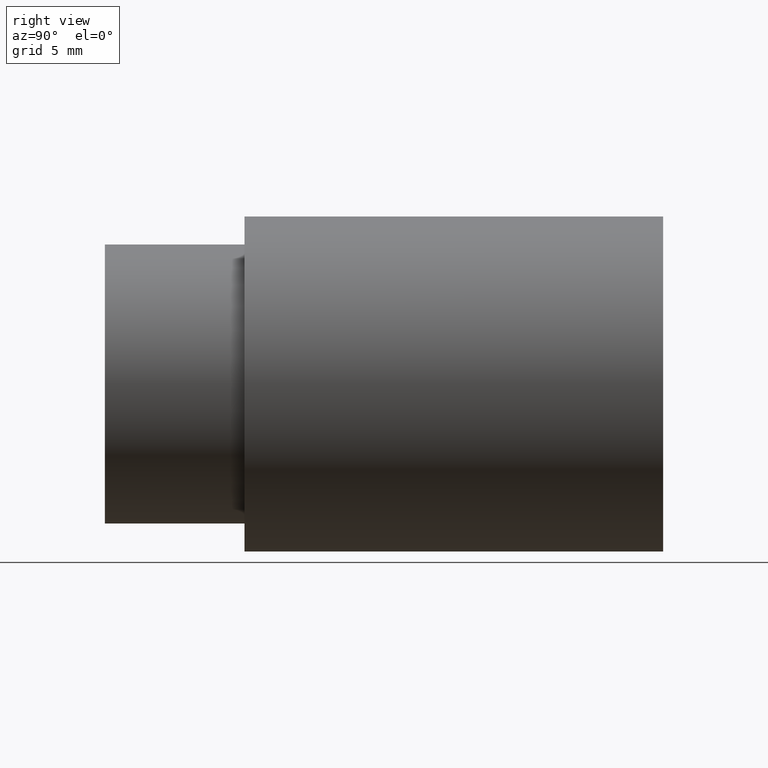
[diagram: clean part render]
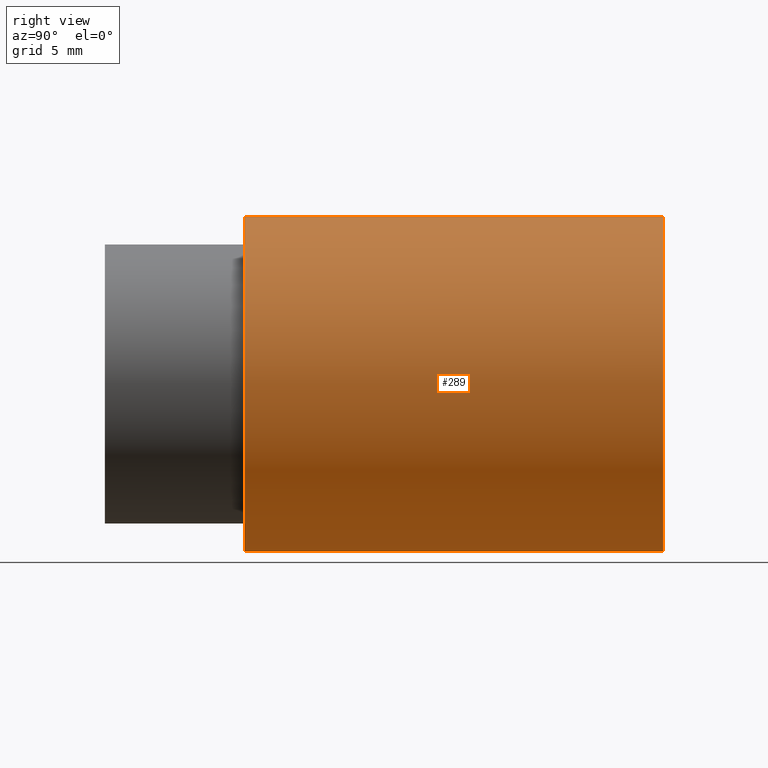
[diagram: same view with one face highlighted and labeled with its STEP entity id]
A machine part, right view. The second image highlights one B-rep face of the part: STEP entity #289.
In plain terms, the highlighted cylindrical surface (partial cylindrical patch) has radius 7.62 mm, axis along (-0, -1, -0).
Its self-contained STEP definition (entity closure, byte-faithful):
#9 = AXIS2_PLACEMENT_3D ( 'NONE', #95, #25, #87 ) ;
#18 = EDGE_CURVE ( 'NONE', #142, #181, #195, .T. ) ;
#19 = EDGE_CURVE ( 'NONE', #181, #286, #196, .T. ) ;
#25 = DIRECTION ( 'NONE',  ( -0.0000000000000000000, -1.000000000000000000, -0.0000000000000000000 ) ) ;
#43 = DIRECTION ( 'NONE',  ( 0.0000000000000000000, 0.0000000000000000000, -1.000000000000000000 ) ) ;
#53 = CARTESIAN_POINT ( 'NONE',  ( 3.673940397442058900E-017, 0.0000000000000000000, 0.2999999999999999900 ) ) ;
#66 = CARTESIAN_POINT ( 'NONE',  ( 0.0000000000000000000, 0.2500000000000000000, -0.2999999999999999900 ) ) ;
#68 = CARTESIAN_POINT ( 'NONE',  ( 0.0000000000000000000, 1.000000000000000000, 0.0000000000000000000 ) ) ;
#74 = CARTESIAN_POINT ( 'NONE',  ( 3.673940397442058900E-017, 0.2500000000000000000, 0.2999999999999999900 ) ) ;
#80 = DIRECTION ( 'NONE',  ( 0.0000000000000000000, 0.0000000000000000000, -1.000000000000000000 ) ) ;
#87 = DIRECTION ( 'NONE',  ( 0.0000000000000000000, 0.0000000000000000000, -1.000000000000000000 ) ) ;
#95 = CARTESIAN_POINT ( 'NONE',  ( 0.0000000000000000000, 0.0000000000000000000, 0.0000000000000000000 ) ) ;
#100 = DIRECTION ( 'NONE',  ( -0.0000000000000000000, -1.000000000000000000, -0.0000000000000000000 ) ) ;
#102 = DIRECTION ( 'NONE',  ( -0.0000000000000000000, -1.000000000000000000, -0.0000000000000000000 ) ) ;
#110 = DIRECTION ( 'NONE',  ( -0.0000000000000000000, -1.000000000000000000, -0.0000000000000000000 ) ) ;
#111 = CARTESIAN_POINT ( 'NONE',  ( 3.673940397442058900E-017, 1.000000000000000000, 0.2999999999999999900 ) ) ;
#112 = DIRECTION ( 'NONE',  ( -0.0000000000000000000, -1.000000000000000000, -0.0000000000000000000 ) ) ;
#113 = CARTESIAN_POINT ( 'NONE',  ( 0.0000000000000000000, 0.0000000000000000000, -0.2999999999999999900 ) ) ;
#122 = CARTESIAN_POINT ( 'NONE',  ( 0.0000000000000000000, 1.000000000000000000, -0.2999999999999999900 ) ) ;
#141 = CARTESIAN_POINT ( 'NONE',  ( 0.0000000000000000000, 0.2500000000000000000, 0.0000000000000000000 ) ) ;
#142 = VERTEX_POINT ( 'NONE', #122 ) ;
#170 = CYLINDRICAL_SURFACE ( 'NONE', #9, 0.2999999999999999900 ) ;
#181 = VERTEX_POINT ( 'NONE', #111 ) ;
#190 = ORIENTED_EDGE ( 'NONE', *, *, #279, .F. ) ;
#191 = ORIENTED_EDGE ( 'NONE', *, *, #280, .F. ) ;
#195 = CIRCLE ( 'NONE', #281, 0.2999999999999999900 ) ;
#196 = LINE ( 'NONE', #53, #200 ) ;
#200 = VECTOR ( 'NONE', #110, 39.37007874015748100 ) ;
#212 = AXIS2_PLACEMENT_3D ( 'NONE', #141, #102, #43 ) ;
#223 = FACE_OUTER_BOUND ( 'NONE', #301, .T. ) ;
#225 = LINE ( 'NONE', #113, #227 ) ;
#226 = CIRCLE ( 'NONE', #212, 0.2999999999999999900 ) ;
#227 = VECTOR ( 'NONE', #112, 39.37007874015748100 ) ;
#229 = ORIENTED_EDGE ( 'NONE', *, *, #18, .T. ) ;
#237 = ORIENTED_EDGE ( 'NONE', *, *, #19, .T. ) ;
#250 = VERTEX_POINT ( 'NONE', #66 ) ;
#279 = EDGE_CURVE ( 'NONE', #142, #250, #225, .T. ) ;
#280 = EDGE_CURVE ( 'NONE', #250, #286, #226, .T. ) ;
#281 = AXIS2_PLACEMENT_3D ( 'NONE', #68, #100, #80 ) ;
#286 = VERTEX_POINT ( 'NONE', #74 ) ;
#289 = ADVANCED_FACE ( 'NONE', ( #223 ), #170, .T. ) ;
#301 = EDGE_LOOP ( 'NONE', ( #229, #237, #191, #190 ) ) ;